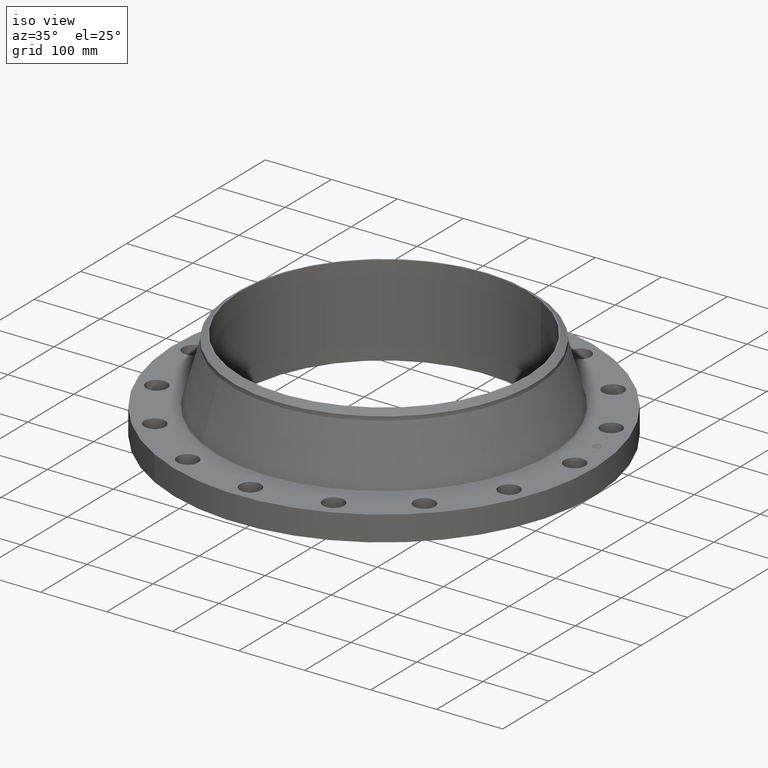
[diagram: clean part render]
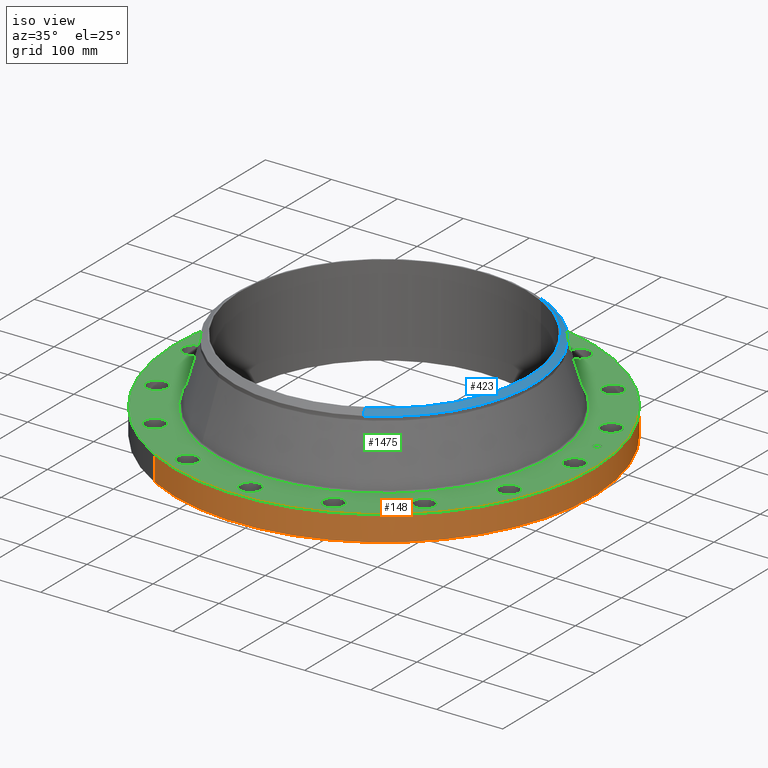
[diagram: same view with three faces highlighted in distinct colors, each labeled with its STEP entity id]
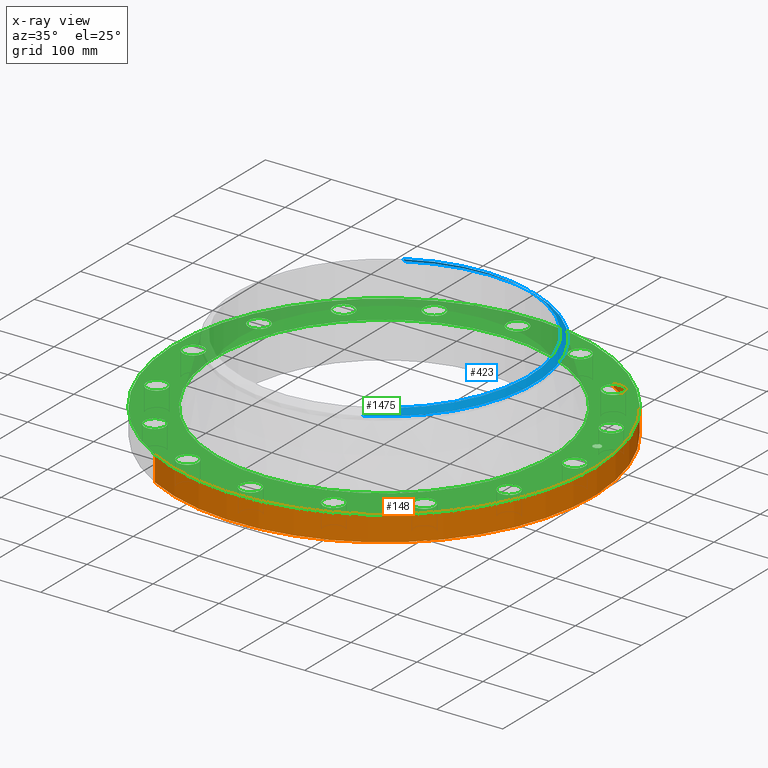
[diagram: x-ray of the same camera — body ghosted, the three highlighted faces saturated]
A machine part, iso view with three faces highlighted in distinct colors.
The next image is the same camera in x-ray (body ghosted, the three faces saturated) — at least one of them is partly hidden behind the body in this view.
Their STEP definitions:

[orange] entity #148 — the highlighted cylindrical surface (partial cylindrical patch) has radius 317.5 mm, axis along (0, 0, -1).
#95=AXIS2_PLACEMENT_3D('Cylinder Axis2P3D',#92,#93,#94) ;
#134=AXIS2_PLACEMENT_3D('Circle Axis2P3D',#132,#133,$) ;
#139=AXIS2_PLACEMENT_3D('Circle Axis2P3D',#137,#138,$) ;
#92=CARTESIAN_POINT('Axis2P3D Location',(0.,0.,2.72000000001)) ;
#101=CARTESIAN_POINT('Vertex',(-5.99281923258,-10.9697820237,1.67844740731E-015)) ;
#103=CARTESIAN_POINT('Vertex',(5.99281923258,10.9697820237,1.67844740731E-015)) ;
#106=CARTESIAN_POINT('Line Origine',(-5.99281923258,-10.9697820237,0.750000000003)) ;
#110=CARTESIAN_POINT('Vertex',(-5.99281923258,-10.9697820237,1.50000000001)) ;
#117=CARTESIAN_POINT('Vertex',(5.99281923258,10.9697820237,1.50000000001)) ;
#120=CARTESIAN_POINT('Line Origine',(5.99281923258,10.9697820237,0.750000000003)) ;
#132=CARTESIAN_POINT('Axis2P3D Location',(0.,0.,1.67844740731E-015)) ;
#137=CARTESIAN_POINT('Axis2P3D Location',(0.,0.,1.50000000001)) ;
#93=DIRECTION('Axis2P3D Direction',(0.,0.,-0.0393700787402)) ;
#94=DIRECTION('Axis2P3D XDirection',(0.0188750212049,0.0345504945626,0.)) ;
#107=DIRECTION('Vector Direction',(0.,0.,-0.0393700787402)) ;
#121=DIRECTION('Vector Direction',(0.,0.,-0.0393700787402)) ;
#133=DIRECTION('Axis2P3D Direction',(0.,0.,-0.0393700787402)) ;
#138=DIRECTION('Axis2P3D Direction',(0.,0.,-0.0393700787402)) ;
#108=VECTOR('Line Direction',#107,0.0393700787402) ;
#122=VECTOR('Line Direction',#121,0.0393700787402) ;
#143=ORIENTED_EDGE('',*,*,#136,.F.) ;
#144=ORIENTED_EDGE('',*,*,#124,.T.) ;
#145=ORIENTED_EDGE('',*,*,#141,.T.) ;
#146=ORIENTED_EDGE('',*,*,#112,.F.) ;
#148=ADVANCED_FACE('PartBody',(#147),#96,.T.) ;
#135=CIRCLE('generated circle',#134,12.5000000001) ;
#140=CIRCLE('generated circle',#139,12.5000000001) ;
#96=CYLINDRICAL_SURFACE('generated cylinder',#95,12.5000000001) ;
#112=EDGE_CURVE('',#102,#111,#109,.F.) ;
#124=EDGE_CURVE('',#104,#118,#123,.F.) ;
#136=EDGE_CURVE('',#104,#102,#135,.T.) ;
#141=EDGE_CURVE('',#118,#111,#140,.T.) ;
#142=EDGE_LOOP('',(#143,#144,#145,#146)) ;
#147=FACE_OUTER_BOUND('',#142,.T.) ;
#109=LINE('Line',#106,#108) ;
#123=LINE('Line',#120,#122) ;
#102=VERTEX_POINT('',#101) ;
#104=VERTEX_POINT('',#103) ;
#111=VERTEX_POINT('',#110) ;
#118=VERTEX_POINT('',#117) ;

[blue] entity #423 — the highlighted conical surface has half-angle 52.5 deg.
#270=AXIS2_PLACEMENT_3D('Circle Axis2P3D',#268,#269,$) ;
#297=AXIS2_PLACEMENT_3D('Circle Axis2P3D',#295,#296,$) ;
#311=AXIS2_PLACEMENT_3D('Cone Axis2P3D',#308,#309,#310) ;
#404=AXIS2_PLACEMENT_3D('Circle Axis2P3D',#402,#403,$) ;
#265=CARTESIAN_POINT('Vertex',(4.31482984746,7.89824305704,5.16433022716)) ;
#268=CARTESIAN_POINT('Axis2P3D Location',(0.,0.,5.16433022716)) ;
#272=CARTESIAN_POINT('Vertex',(4.31482984746,-7.89824305704,5.16433022716)) ;
#292=CARTESIAN_POINT('Vertex',(-4.31482984746,7.89824305704,5.16433022716)) ;
#295=CARTESIAN_POINT('Axis2P3D Location',(0.,0.,5.16433022716)) ;
#308=CARTESIAN_POINT('Axis2P3D Location',(0.,0.,5.44000000002)) ;
#313=CARTESIAN_POINT('Line Origine',(4.22871067571,-7.74060297055,5.30216511359)) ;
#317=CARTESIAN_POINT('Vertex',(4.14259150396,-7.58296288406,5.44000000002)) ;
#324=CARTESIAN_POINT('Vertex',(-4.14259150396,7.58296288406,5.44000000002)) ;
#327=CARTESIAN_POINT('Line Origine',(-4.22871067571,7.74060297055,5.30216511359)) ;
#402=CARTESIAN_POINT('Axis2P3D Location',(0.,0.,5.44000000002)) ;
#269=DIRECTION('Axis2P3D Direction',(0.,0.,-0.0393700787402)) ;
#296=DIRECTION('Axis2P3D Direction',(0.,0.,-0.0393700787402)) ;
#309=DIRECTION('Axis2P3D Direction',(-0.,-0.,-0.0393700787402)) ;
#310=DIRECTION('Axis2P3D XDirection',(-0.0188750212049,0.0345504945626,0.)) ;
#314=DIRECTION('Vector Direction',(0.014974561121,-0.02741075027,-0.023966985394)) ;
#328=DIRECTION('Vector Direction',(-0.014974561121,0.02741075027,-0.023966985394)) ;
#403=DIRECTION('Axis2P3D Direction',(0.,0.,-0.0393700787402)) ;
#315=VECTOR('Line Direction',#314,0.0393700787402) ;
#329=VECTOR('Line Direction',#328,0.0393700787402) ;
#417=ORIENTED_EDGE('',*,*,#331,.F.) ;
#418=ORIENTED_EDGE('',*,*,#406,.F.) ;
#419=ORIENTED_EDGE('',*,*,#319,.T.) ;
#420=ORIENTED_EDGE('',*,*,#274,.T.) ;
#421=ORIENTED_EDGE('',*,*,#299,.F.) ;
#423=ADVANCED_FACE('PartBody',(#422),#312,.T.) ;
#271=CIRCLE('generated circle',#270,9.00000000004) ;
#298=CIRCLE('generated circle',#297,9.00000000004) ;
#405=CIRCLE('generated circle',#404,8.64074015751) ;
#312=CONICAL_SURFACE('Cone',#311,8.64074015751,0.916297857297) ;
#274=EDGE_CURVE('',#273,#266,#271,.F.) ;
#299=EDGE_CURVE('',#293,#266,#298,.T.) ;
#319=EDGE_CURVE('',#318,#273,#316,.T.) ;
#331=EDGE_CURVE('',#325,#293,#330,.T.) ;
#406=EDGE_CURVE('',#318,#325,#405,.F.) ;
#416=EDGE_LOOP('',(#417,#418,#419,#420,#421)) ;
#422=FACE_OUTER_BOUND('',#416,.T.) ;
#316=LINE('Line',#313,#315) ;
#330=LINE('Line',#327,#329) ;
#266=VERTEX_POINT('',#265) ;
#273=VERTEX_POINT('',#272) ;
#293=VERTEX_POINT('',#292) ;
#318=VERTEX_POINT('',#317) ;
#325=VERTEX_POINT('',#324) ;

[green] entity #1475 — the highlighted planar face has unit normal (0, 0, -1).
#65=AXIS2_PLACEMENT_3D('Circle Axis2P3D',#63,#64,$) ;
#82=AXIS2_PLACEMENT_3D('Circle Axis2P3D',#80,#81,$) ;
#115=AXIS2_PLACEMENT_3D('Circle Axis2P3D',#113,#114,$) ;
#139=AXIS2_PLACEMENT_3D('Circle Axis2P3D',#137,#138,$) ;
#156=AXIS2_PLACEMENT_3D('Circle Axis2P3D',#154,#155,$) ;
#191=AXIS2_PLACEMENT_3D('Circle Axis2P3D',#189,#190,$) ;
#756=AXIS2_PLACEMENT_3D('Circle Axis2P3D',#754,#755,$) ;
#768=AXIS2_PLACEMENT_3D('Circle Axis2P3D',#766,#767,$) ;
#799=AXIS2_PLACEMENT_3D('Circle Axis2P3D',#797,#798,$) ;
#811=AXIS2_PLACEMENT_3D('Circle Axis2P3D',#809,#810,$) ;
#842=AXIS2_PLACEMENT_3D('Circle Axis2P3D',#840,#841,$) ;
#854=AXIS2_PLACEMENT_3D('Circle Axis2P3D',#852,#853,$) ;
#885=AXIS2_PLACEMENT_3D('Circle Axis2P3D',#883,#884,$) ;
#897=AXIS2_PLACEMENT_3D('Circle Axis2P3D',#895,#896,$) ;
#928=AXIS2_PLACEMENT_3D('Circle Axis2P3D',#926,#927,$) ;
#940=AXIS2_PLACEMENT_3D('Circle Axis2P3D',#938,#939,$) ;
#971=AXIS2_PLACEMENT_3D('Circle Axis2P3D',#969,#970,$) ;
#983=AXIS2_PLACEMENT_3D('Circle Axis2P3D',#981,#982,$) ;
#1014=AXIS2_PLACEMENT_3D('Circle Axis2P3D',#1012,#1013,$) ;
#1026=AXIS2_PLACEMENT_3D('Circle Axis2P3D',#1024,#1025,$) ;
#1057=AXIS2_PLACEMENT_3D('Circle Axis2P3D',#1055,#1056,$) ;
#1069=AXIS2_PLACEMENT_3D('Circle Axis2P3D',#1067,#1068,$) ;
#1100=AXIS2_PLACEMENT_3D('Circle Axis2P3D',#1098,#1099,$) ;
#1112=AXIS2_PLACEMENT_3D('Circle Axis2P3D',#1110,#1111,$) ;
#1143=AXIS2_PLACEMENT_3D('Circle Axis2P3D',#1141,#1142,$) ;
#1155=AXIS2_PLACEMENT_3D('Circle Axis2P3D',#1153,#1154,$) ;
#1186=AXIS2_PLACEMENT_3D('Circle Axis2P3D',#1184,#1185,$) ;
#1198=AXIS2_PLACEMENT_3D('Circle Axis2P3D',#1196,#1197,$) ;
#1229=AXIS2_PLACEMENT_3D('Circle Axis2P3D',#1227,#1228,$) ;
#1241=AXIS2_PLACEMENT_3D('Circle Axis2P3D',#1239,#1240,$) ;
#1272=AXIS2_PLACEMENT_3D('Circle Axis2P3D',#1270,#1271,$) ;
#1284=AXIS2_PLACEMENT_3D('Circle Axis2P3D',#1282,#1283,$) ;
#1315=AXIS2_PLACEMENT_3D('Circle Axis2P3D',#1313,#1314,$) ;
#1327=AXIS2_PLACEMENT_3D('Circle Axis2P3D',#1325,#1326,$) ;
#1358=AXIS2_PLACEMENT_3D('Circle Axis2P3D',#1356,#1357,$) ;
#1370=AXIS2_PLACEMENT_3D('Circle Axis2P3D',#1368,#1369,$) ;
#1383=AXIS2_PLACEMENT_3D('Plane Axis2P3D',#1380,#1381,#1382) ;
#1459=AXIS2_PLACEMENT_3D('Circle Axis2P3D',#1457,#1458,$) ;
#1468=AXIS2_PLACEMENT_3D('Circle Axis2P3D',#1466,#1467,$) ;
#46=CARTESIAN_POINT('Vertex',(10.8265108989,0.299640961629,1.50000000001)) ;
#60=CARTESIAN_POINT('Vertex',(11.9234891012,-0.299640961629,1.50000000001)) ;
#63=CARTESIAN_POINT('Axis2P3D Location',(11.375,0.,1.50000000001)) ;
#80=CARTESIAN_POINT('Axis2P3D Location',(11.375,0.,1.50000000001)) ;
#110=CARTESIAN_POINT('Vertex',(-5.99281923258,-10.9697820237,1.50000000001)) ;
#113=CARTESIAN_POINT('Axis2P3D Location',(0.,0.,1.50000000001)) ;
#117=CARTESIAN_POINT('Vertex',(5.99281923258,10.9697820237,1.50000000001)) ;
#137=CARTESIAN_POINT('Axis2P3D Location',(0.,0.,1.50000000001)) ;
#154=CARTESIAN_POINT('Axis2P3D Location',(0.,0.,1.50000000001)) ;
#158=CARTESIAN_POINT('Vertex',(4.80936931147,8.80349147383,1.50000000001)) ;
#160=CARTESIAN_POINT('Vertex',(-4.80936931147,-8.80349147383,1.50000000001)) ;
#189=CARTESIAN_POINT('Axis2P3D Location',(0.,0.,1.50000000001)) ;
#744=CARTESIAN_POINT('Vertex',(-10.1170594596,3.86629419976,1.50000000001)) ;
#751=CARTESIAN_POINT('Vertex',(-10.9011999051,4.83975388658,1.50000000001)) ;
#754=CARTESIAN_POINT('Axis2P3D Location',(-10.5091296824,4.35302404317,1.50000000001)) ;
#766=CARTESIAN_POINT('Axis2P3D Location',(-10.5091296824,4.35302404317,1.50000000001)) ;
#787=CARTESIAN_POINT('Vertex',(7.86737742906,-7.44362111729,1.50000000001)) ;
#794=CARTESIAN_POINT('Vertex',(8.21930184299,-8.64305815477,1.50000000001)) ;
#797=CARTESIAN_POINT('Axis2P3D Location',(8.04333963603,-8.04333963603,1.50000000001)) ;
#809=CARTESIAN_POINT('Axis2P3D Location',(8.04333963603,-8.04333963603,1.50000000001)) ;
#830=CARTESIAN_POINT('Vertex',(-7.86737742906,7.44362111729,1.50000000001)) ;
#837=CARTESIAN_POINT('Vertex',(-8.21930184299,8.64305815477,1.50000000001)) ;
#840=CARTESIAN_POINT('Axis2P3D Location',(-8.04333963603,8.04333963603,1.50000000001)) ;
#852=CARTESIAN_POINT('Axis2P3D Location',(-8.04333963603,8.04333963603,1.50000000001)) ;
#873=CARTESIAN_POINT('Vertex',(4.41995850287,-9.8877241963,1.50000000001)) ;
#880=CARTESIAN_POINT('Vertex',(4.28608958348,-11.1305351684,1.50000000001)) ;
#883=CARTESIAN_POINT('Axis2P3D Location',(4.35302404317,-10.5091296824,1.50000000001)) ;
#895=CARTESIAN_POINT('Axis2P3D Location',(4.35302404317,-10.5091296824,1.50000000001)) ;
#916=CARTESIAN_POINT('Vertex',(-4.41995850287,9.8877241963,1.50000000001)) ;
#923=CARTESIAN_POINT('Vertex',(-4.28608958348,11.1305351684,1.50000000001)) ;
#926=CARTESIAN_POINT('Axis2P3D Location',(-4.35302404317,10.5091296824,1.50000000001)) ;
#938=CARTESIAN_POINT('Axis2P3D Location',(-4.35302404317,10.5091296824,1.50000000001)) ;
#959=CARTESIAN_POINT('Vertex',(0.299640961629,-10.8265108989,1.50000000001)) ;
#966=CARTESIAN_POINT('Vertex',(-0.299640961629,-11.9234891012,1.50000000001)) ;
#969=CARTESIAN_POINT('Axis2P3D Location',(-1.54141200939E-015,-11.375,1.50000000001)) ;
#981=CARTESIAN_POINT('Axis2P3D Location',(-1.54141200939E-015,-11.375,1.50000000001)) ;
#1002=CARTESIAN_POINT('Vertex',(-0.299640961629,10.8265108989,1.50000000001)) ;
#1009=CARTESIAN_POINT('Vertex',(0.299640961629,11.9234891012,1.50000000001)) ;
#1012=CARTESIAN_POINT('Axis2P3D Location',(-2.08955360105E-015,11.375,1.50000000001)) ;
#1024=CARTESIAN_POINT('Axis2P3D Location',(-2.08955360105E-015,11.375,1.50000000001)) ;
#1045=CARTESIAN_POINT('Vertex',(-3.86629419976,-10.1170594596,1.50000000001)) ;
#1052=CARTESIAN_POINT('Vertex',(-4.83975388658,-10.9011999051,1.50000000001)) ;
#1055=CARTESIAN_POINT('Axis2P3D Location',(-4.35302404317,-10.5091296824,1.50000000001)) ;
#1067=CARTESIAN_POINT('Axis2P3D Location',(-4.35302404317,-10.5091296824,1.50000000001)) ;
#1088=CARTESIAN_POINT('Vertex',(3.86629419976,10.1170594596,1.50000000001)) ;
#1095=CARTESIAN_POINT('Vertex',(4.83975388658,10.9011999051,1.50000000001)) ;
#1098=CARTESIAN_POINT('Axis2P3D Location',(4.35302404317,10.5091296824,1.50000000001)) ;
#1110=CARTESIAN_POINT('Axis2P3D Location',(4.35302404317,10.5091296824,1.50000000001)) ;
#1131=CARTESIAN_POINT('Vertex',(-7.44362111729,-7.86737742906,1.50000000001)) ;
#1138=CARTESIAN_POINT('Vertex',(-8.64305815477,-8.21930184299,1.50000000001)) ;
#1141=CARTESIAN_POINT('Axis2P3D Location',(-8.04333963603,-8.04333963603,1.50000000001)) ;
#1153=CARTESIAN_POINT('Axis2P3D Location',(-8.04333963603,-8.04333963603,1.50000000001)) ;
#1174=CARTESIAN_POINT('Vertex',(7.44362111729,7.86737742906,1.50000000001)) ;
#1181=CARTESIAN_POINT('Vertex',(8.64305815477,8.21930184299,1.50000000001)) ;
#1184=CARTESIAN_POINT('Axis2P3D Location',(8.04333963603,8.04333963603,1.50000000001)) ;
#1196=CARTESIAN_POINT('Axis2P3D Location',(8.04333963603,8.04333963603,1.50000000001)) ;
#1217=CARTESIAN_POINT('Vertex',(-9.8877241963,-4.41995850287,1.50000000001)) ;
#1224=CARTESIAN_POINT('Vertex',(-11.1305351684,-4.28608958348,1.50000000001)) ;
#1227=CARTESIAN_POINT('Axis2P3D Location',(-10.5091296824,-4.35302404317,1.50000000001)) ;
#1239=CARTESIAN_POINT('Axis2P3D Location',(-10.5091296824,-4.35302404317,1.50000000001)) ;
#1260=CARTESIAN_POINT('Vertex',(9.8877241963,4.41995850287,1.50000000001)) ;
#1267=CARTESIAN_POINT('Vertex',(11.1305351684,4.28608958348,1.50000000001)) ;
#1270=CARTESIAN_POINT('Axis2P3D Location',(10.5091296824,4.35302404317,1.50000000001)) ;
#1282=CARTESIAN_POINT('Axis2P3D Location',(10.5091296824,4.35302404317,1.50000000001)) ;
#1303=CARTESIAN_POINT('Vertex',(-10.8265108989,-0.299640961629,1.50000000001)) ;
#1310=CARTESIAN_POINT('Vertex',(-11.9234891012,0.299640961629,1.50000000001)) ;
#1313=CARTESIAN_POINT('Axis2P3D Location',(-11.375,-1.39303573404E-015,1.50000000001)) ;
#1325=CARTESIAN_POINT('Axis2P3D Location',(-11.375,-1.39303573404E-015,1.50000000001)) ;
#1346=CARTESIAN_POINT('Vertex',(10.1170594596,-3.86629419976,1.50000000001)) ;
#1353=CARTESIAN_POINT('Vertex',(10.9011999051,-4.83975388658,1.50000000001)) ;
#1356=CARTESIAN_POINT('Axis2P3D Location',(10.5091296824,-4.35302404317,1.50000000001)) ;
#1368=CARTESIAN_POINT('Axis2P3D Location',(10.5091296824,-4.35302404317,1.50000000001)) ;
#1380=CARTESIAN_POINT('Axis2P3D Location',(0.,12.5000000001,1.50000000001)) ;
#1457=CARTESIAN_POINT('Axis2P3D Location',(11.1564325646,2.21915241294,1.50000000001)) ;
#1461=CARTESIAN_POINT('Vertex',(11.1081477099,2.46189676984,1.50000000001)) ;
#1463=CARTESIAN_POINT('Vertex',(11.2047174193,1.97640805604,1.50000000001)) ;
#1466=CARTESIAN_POINT('Axis2P3D Location',(11.1564325646,2.21915241294,1.50000000001)) ;
#64=DIRECTION('Axis2P3D Direction',(0.,-0.,-0.0393700787402)) ;
#81=DIRECTION('Axis2P3D Direction',(0.,-0.,-0.0393700787402)) ;
#114=DIRECTION('Axis2P3D Direction',(0.,0.,-0.0393700787402)) ;
#138=DIRECTION('Axis2P3D Direction',(0.,0.,-0.0393700787402)) ;
#155=DIRECTION('Axis2P3D Direction',(0.,0.,-0.0393700787402)) ;
#190=DIRECTION('Axis2P3D Direction',(0.,0.,-0.0393700787402)) ;
#755=DIRECTION('Axis2P3D Direction',(0.,0.,-0.0393700787402)) ;
#767=DIRECTION('Axis2P3D Direction',(0.,0.,-0.0393700787402)) ;
#798=DIRECTION('Axis2P3D Direction',(0.,-0.,-0.0393700787402)) ;
#810=DIRECTION('Axis2P3D Direction',(0.,-0.,-0.0393700787402)) ;
#841=DIRECTION('Axis2P3D Direction',(0.,0.,-0.0393700787402)) ;
#853=DIRECTION('Axis2P3D Direction',(0.,0.,-0.0393700787402)) ;
#884=DIRECTION('Axis2P3D Direction',(0.,-0.,-0.0393700787402)) ;
#896=DIRECTION('Axis2P3D Direction',(0.,-0.,-0.0393700787402)) ;
#927=DIRECTION('Axis2P3D Direction',(0.,0.,-0.0393700787402)) ;
#939=DIRECTION('Axis2P3D Direction',(0.,0.,-0.0393700787402)) ;
#970=DIRECTION('Axis2P3D Direction',(0.,-0.,-0.0393700787402)) ;
#982=DIRECTION('Axis2P3D Direction',(0.,-0.,-0.0393700787402)) ;
#1013=DIRECTION('Axis2P3D Direction',(0.,0.,-0.0393700787402)) ;
#1025=DIRECTION('Axis2P3D Direction',(0.,0.,-0.0393700787402)) ;
#1056=DIRECTION('Axis2P3D Direction',(-0.,0.,-0.0393700787402)) ;
#1068=DIRECTION('Axis2P3D Direction',(-0.,0.,-0.0393700787402)) ;
#1099=DIRECTION('Axis2P3D Direction',(0.,0.,-0.0393700787402)) ;
#1111=DIRECTION('Axis2P3D Direction',(0.,0.,-0.0393700787402)) ;
#1142=DIRECTION('Axis2P3D Direction',(-0.,0.,-0.0393700787402)) ;
#1154=DIRECTION('Axis2P3D Direction',(-0.,0.,-0.0393700787402)) ;
#1185=DIRECTION('Axis2P3D Direction',(0.,0.,-0.0393700787402)) ;
#1197=DIRECTION('Axis2P3D Direction',(0.,0.,-0.0393700787402)) ;
#1228=DIRECTION('Axis2P3D Direction',(-0.,0.,-0.0393700787402)) ;
#1240=DIRECTION('Axis2P3D Direction',(-0.,0.,-0.0393700787402)) ;
#1271=DIRECTION('Axis2P3D Direction',(0.,0.,-0.0393700787402)) ;
#1283=DIRECTION('Axis2P3D Direction',(0.,0.,-0.0393700787402)) ;
#1314=DIRECTION('Axis2P3D Direction',(-0.,0.,-0.0393700787402)) ;
#1326=DIRECTION('Axis2P3D Direction',(-0.,0.,-0.0393700787402)) ;
#1357=DIRECTION('Axis2P3D Direction',(0.,-0.,-0.0393700787402)) ;
#1369=DIRECTION('Axis2P3D Direction',(0.,-0.,-0.0393700787402)) ;
#1381=DIRECTION('Axis2P3D Direction',(0.,0.,-0.0393700787402)) ;
#1382=DIRECTION('Axis2P3D XDirection',(0.0393700787402,0.,0.)) ;
#1458=DIRECTION('Axis2P3D Direction',(0.,0.,-0.0393700787402)) ;
#1467=DIRECTION('Axis2P3D Direction',(0.,0.,-0.0393700787402)) ;
#1386=ORIENTED_EDGE('',*,*,#141,.F.) ;
#1387=ORIENTED_EDGE('',*,*,#119,.F.) ;
#1390=ORIENTED_EDGE('',*,*,#67,.T.) ;
#1391=ORIENTED_EDGE('',*,*,#84,.T.) ;
#1394=ORIENTED_EDGE('',*,*,#193,.T.) ;
#1395=ORIENTED_EDGE('',*,*,#162,.T.) ;
#1398=ORIENTED_EDGE('',*,*,#1372,.T.) ;
#1399=ORIENTED_EDGE('',*,*,#1360,.T.) ;
#1402=ORIENTED_EDGE('',*,*,#813,.T.) ;
#1403=ORIENTED_EDGE('',*,*,#801,.T.) ;
#1406=ORIENTED_EDGE('',*,*,#899,.T.) ;
#1407=ORIENTED_EDGE('',*,*,#887,.T.) ;
#1410=ORIENTED_EDGE('',*,*,#985,.T.) ;
#1411=ORIENTED_EDGE('',*,*,#973,.T.) ;
#1414=ORIENTED_EDGE('',*,*,#1071,.T.) ;
#1415=ORIENTED_EDGE('',*,*,#1059,.T.) ;
#1418=ORIENTED_EDGE('',*,*,#1157,.T.) ;
#1419=ORIENTED_EDGE('',*,*,#1145,.T.) ;
#1422=ORIENTED_EDGE('',*,*,#1243,.T.) ;
#1423=ORIENTED_EDGE('',*,*,#1231,.T.) ;
#1426=ORIENTED_EDGE('',*,*,#1329,.T.) ;
#1427=ORIENTED_EDGE('',*,*,#1317,.T.) ;
#1430=ORIENTED_EDGE('',*,*,#770,.T.) ;
#1431=ORIENTED_EDGE('',*,*,#758,.T.) ;
#1434=ORIENTED_EDGE('',*,*,#856,.T.) ;
#1435=ORIENTED_EDGE('',*,*,#844,.T.) ;
#1438=ORIENTED_EDGE('',*,*,#942,.T.) ;
#1439=ORIENTED_EDGE('',*,*,#930,.T.) ;
#1442=ORIENTED_EDGE('',*,*,#1028,.T.) ;
#1443=ORIENTED_EDGE('',*,*,#1016,.T.) ;
#1446=ORIENTED_EDGE('',*,*,#1114,.T.) ;
#1447=ORIENTED_EDGE('',*,*,#1102,.T.) ;
#1450=ORIENTED_EDGE('',*,*,#1200,.T.) ;
#1451=ORIENTED_EDGE('',*,*,#1188,.T.) ;
#1454=ORIENTED_EDGE('',*,*,#1286,.T.) ;
#1455=ORIENTED_EDGE('',*,*,#1274,.T.) ;
#1472=ORIENTED_EDGE('',*,*,#1465,.T.) ;
#1473=ORIENTED_EDGE('',*,*,#1470,.T.) ;
#1392=FACE_BOUND('',#1389,.T.) ;
#1396=FACE_BOUND('',#1393,.T.) ;
#1400=FACE_BOUND('',#1397,.T.) ;
#1404=FACE_BOUND('',#1401,.T.) ;
#1408=FACE_BOUND('',#1405,.T.) ;
#1412=FACE_BOUND('',#1409,.T.) ;
#1416=FACE_BOUND('',#1413,.T.) ;
#1420=FACE_BOUND('',#1417,.T.) ;
#1424=FACE_BOUND('',#1421,.T.) ;
#1428=FACE_BOUND('',#1425,.T.) ;
#1432=FACE_BOUND('',#1429,.T.) ;
#1436=FACE_BOUND('',#1433,.T.) ;
#1440=FACE_BOUND('',#1437,.T.) ;
#1444=FACE_BOUND('',#1441,.T.) ;
#1448=FACE_BOUND('',#1445,.T.) ;
#1452=FACE_BOUND('',#1449,.T.) ;
#1456=FACE_BOUND('',#1453,.T.) ;
#1474=FACE_BOUND('',#1471,.T.) ;
#1475=ADVANCED_FACE('PartBody',(#1388,#1392,#1396,#1400,#1404,#1408,#1412,#1416,#1420,#1424,#1428,#1432,#1436,#1440,#1444,#1448,#1452,#1456,#1474),#1384,.F.) ;
#66=CIRCLE('generated circle',#65,0.625000000002) ;
#83=CIRCLE('generated circle',#82,0.625000000002) ;
#116=CIRCLE('generated circle',#115,12.5000000001) ;
#140=CIRCLE('generated circle',#139,12.5000000001) ;
#157=CIRCLE('generated circle',#156,10.0315250737) ;
#192=CIRCLE('generated circle',#191,10.0315250737) ;
#757=CIRCLE('generated circle',#756,0.625000000002) ;
#769=CIRCLE('generated circle',#768,0.625000000002) ;
#800=CIRCLE('generated circle',#799,0.625000000002) ;
#812=CIRCLE('generated circle',#811,0.625000000002) ;
#843=CIRCLE('generated circle',#842,0.625000000002) ;
#855=CIRCLE('generated circle',#854,0.625000000002) ;
#886=CIRCLE('generated circle',#885,0.625000000002) ;
#898=CIRCLE('generated circle',#897,0.625000000002) ;
#929=CIRCLE('generated circle',#928,0.625000000002) ;
#941=CIRCLE('generated circle',#940,0.625000000002) ;
#972=CIRCLE('generated circle',#971,0.625000000002) ;
#984=CIRCLE('generated circle',#983,0.625000000002) ;
#1015=CIRCLE('generated circle',#1014,0.625000000002) ;
#1027=CIRCLE('generated circle',#1026,0.625000000002) ;
#1058=CIRCLE('generated circle',#1057,0.625000000002) ;
#1070=CIRCLE('generated circle',#1069,0.625000000002) ;
#1101=CIRCLE('generated circle',#1100,0.625000000002) ;
#1113=CIRCLE('generated circle',#1112,0.625000000002) ;
#1144=CIRCLE('generated circle',#1143,0.625000000002) ;
#1156=CIRCLE('generated circle',#1155,0.625000000002) ;
#1187=CIRCLE('generated circle',#1186,0.625000000002) ;
#1199=CIRCLE('generated circle',#1198,0.625000000002) ;
#1230=CIRCLE('generated circle',#1229,0.625000000002) ;
#1242=CIRCLE('generated circle',#1241,0.625000000002) ;
#1273=CIRCLE('generated circle',#1272,0.625000000002) ;
#1285=CIRCLE('generated circle',#1284,0.625000000002) ;
#1316=CIRCLE('generated circle',#1315,0.625000000003) ;
#1328=CIRCLE('generated circle',#1327,0.625000000003) ;
#1359=CIRCLE('generated circle',#1358,0.625000000002) ;
#1371=CIRCLE('generated circle',#1370,0.625000000002) ;
#1460=CIRCLE('generated circle',#1459,0.247500000001) ;
#1469=CIRCLE('generated circle',#1468,0.247500000001) ;
#67=EDGE_CURVE('',#47,#61,#66,.T.) ;
#84=EDGE_CURVE('',#61,#47,#83,.T.) ;
#119=EDGE_CURVE('',#111,#118,#116,.T.) ;
#141=EDGE_CURVE('',#118,#111,#140,.T.) ;
#162=EDGE_CURVE('',#159,#161,#157,.T.) ;
#193=EDGE_CURVE('',#161,#159,#192,.T.) ;
#758=EDGE_CURVE('',#745,#752,#757,.T.) ;
#770=EDGE_CURVE('',#752,#745,#769,.T.) ;
#801=EDGE_CURVE('',#788,#795,#800,.T.) ;
#813=EDGE_CURVE('',#795,#788,#812,.T.) ;
#844=EDGE_CURVE('',#831,#838,#843,.T.) ;
#856=EDGE_CURVE('',#838,#831,#855,.T.) ;
#887=EDGE_CURVE('',#874,#881,#886,.T.) ;
#899=EDGE_CURVE('',#881,#874,#898,.T.) ;
#930=EDGE_CURVE('',#917,#924,#929,.T.) ;
#942=EDGE_CURVE('',#924,#917,#941,.T.) ;
#973=EDGE_CURVE('',#960,#967,#972,.T.) ;
#985=EDGE_CURVE('',#967,#960,#984,.T.) ;
#1016=EDGE_CURVE('',#1003,#1010,#1015,.T.) ;
#1028=EDGE_CURVE('',#1010,#1003,#1027,.T.) ;
#1059=EDGE_CURVE('',#1046,#1053,#1058,.T.) ;
#1071=EDGE_CURVE('',#1053,#1046,#1070,.T.) ;
#1102=EDGE_CURVE('',#1089,#1096,#1101,.T.) ;
#1114=EDGE_CURVE('',#1096,#1089,#1113,.T.) ;
#1145=EDGE_CURVE('',#1132,#1139,#1144,.T.) ;
#1157=EDGE_CURVE('',#1139,#1132,#1156,.T.) ;
#1188=EDGE_CURVE('',#1175,#1182,#1187,.T.) ;
#1200=EDGE_CURVE('',#1182,#1175,#1199,.T.) ;
#1231=EDGE_CURVE('',#1218,#1225,#1230,.T.) ;
#1243=EDGE_CURVE('',#1225,#1218,#1242,.T.) ;
#1274=EDGE_CURVE('',#1261,#1268,#1273,.T.) ;
#1286=EDGE_CURVE('',#1268,#1261,#1285,.T.) ;
#1317=EDGE_CURVE('',#1304,#1311,#1316,.T.) ;
#1329=EDGE_CURVE('',#1311,#1304,#1328,.T.) ;
#1360=EDGE_CURVE('',#1347,#1354,#1359,.T.) ;
#1372=EDGE_CURVE('',#1354,#1347,#1371,.T.) ;
#1465=EDGE_CURVE('',#1462,#1464,#1460,.T.) ;
#1470=EDGE_CURVE('',#1464,#1462,#1469,.T.) ;
#1385=EDGE_LOOP('',(#1386,#1387)) ;
#1389=EDGE_LOOP('',(#1390,#1391)) ;
#1393=EDGE_LOOP('',(#1394,#1395)) ;
#1397=EDGE_LOOP('',(#1398,#1399)) ;
#1401=EDGE_LOOP('',(#1402,#1403)) ;
#1405=EDGE_LOOP('',(#1406,#1407)) ;
#1409=EDGE_LOOP('',(#1410,#1411)) ;
#1413=EDGE_LOOP('',(#1414,#1415)) ;
#1417=EDGE_LOOP('',(#1418,#1419)) ;
#1421=EDGE_LOOP('',(#1422,#1423)) ;
#1425=EDGE_LOOP('',(#1426,#1427)) ;
#1429=EDGE_LOOP('',(#1430,#1431)) ;
#1433=EDGE_LOOP('',(#1434,#1435)) ;
#1437=EDGE_LOOP('',(#1438,#1439)) ;
#1441=EDGE_LOOP('',(#1442,#1443)) ;
#1445=EDGE_LOOP('',(#1446,#1447)) ;
#1449=EDGE_LOOP('',(#1450,#1451)) ;
#1453=EDGE_LOOP('',(#1454,#1455)) ;
#1471=EDGE_LOOP('',(#1472,#1473)) ;
#1388=FACE_OUTER_BOUND('',#1385,.T.) ;
#1384=PLANE('',#1383) ;
#47=VERTEX_POINT('',#46) ;
#61=VERTEX_POINT('',#60) ;
#111=VERTEX_POINT('',#110) ;
#118=VERTEX_POINT('',#117) ;
#159=VERTEX_POINT('',#158) ;
#161=VERTEX_POINT('',#160) ;
#745=VERTEX_POINT('',#744) ;
#752=VERTEX_POINT('',#751) ;
#788=VERTEX_POINT('',#787) ;
#795=VERTEX_POINT('',#794) ;
#831=VERTEX_POINT('',#830) ;
#838=VERTEX_POINT('',#837) ;
#874=VERTEX_POINT('',#873) ;
#881=VERTEX_POINT('',#880) ;
#917=VERTEX_POINT('',#916) ;
#924=VERTEX_POINT('',#923) ;
#960=VERTEX_POINT('',#959) ;
#967=VERTEX_POINT('',#966) ;
#1003=VERTEX_POINT('',#1002) ;
#1010=VERTEX_POINT('',#1009) ;
#1046=VERTEX_POINT('',#1045) ;
#1053=VERTEX_POINT('',#1052) ;
#1089=VERTEX_POINT('',#1088) ;
#1096=VERTEX_POINT('',#1095) ;
#1132=VERTEX_POINT('',#1131) ;
#1139=VERTEX_POINT('',#1138) ;
#1175=VERTEX_POINT('',#1174) ;
#1182=VERTEX_POINT('',#1181) ;
#1218=VERTEX_POINT('',#1217) ;
#1225=VERTEX_POINT('',#1224) ;
#1261=VERTEX_POINT('',#1260) ;
#1268=VERTEX_POINT('',#1267) ;
#1304=VERTEX_POINT('',#1303) ;
#1311=VERTEX_POINT('',#1310) ;
#1347=VERTEX_POINT('',#1346) ;
#1354=VERTEX_POINT('',#1353) ;
#1462=VERTEX_POINT('',#1461) ;
#1464=VERTEX_POINT('',#1463) ;